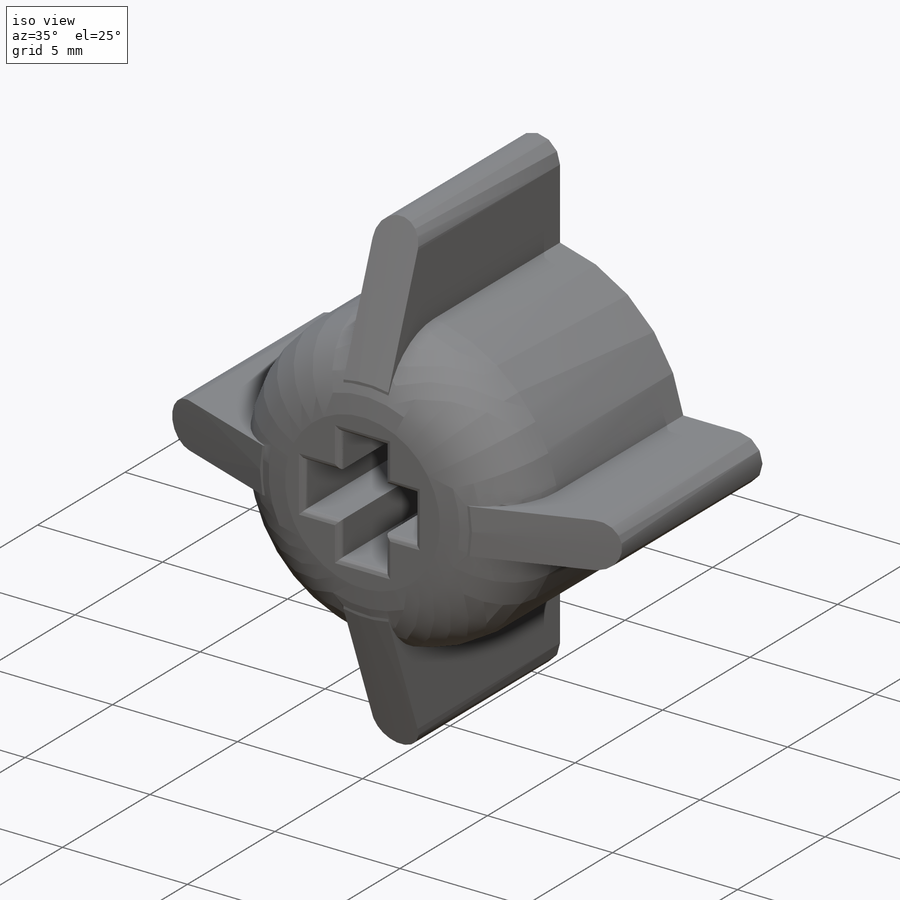
[diagram: iso view]
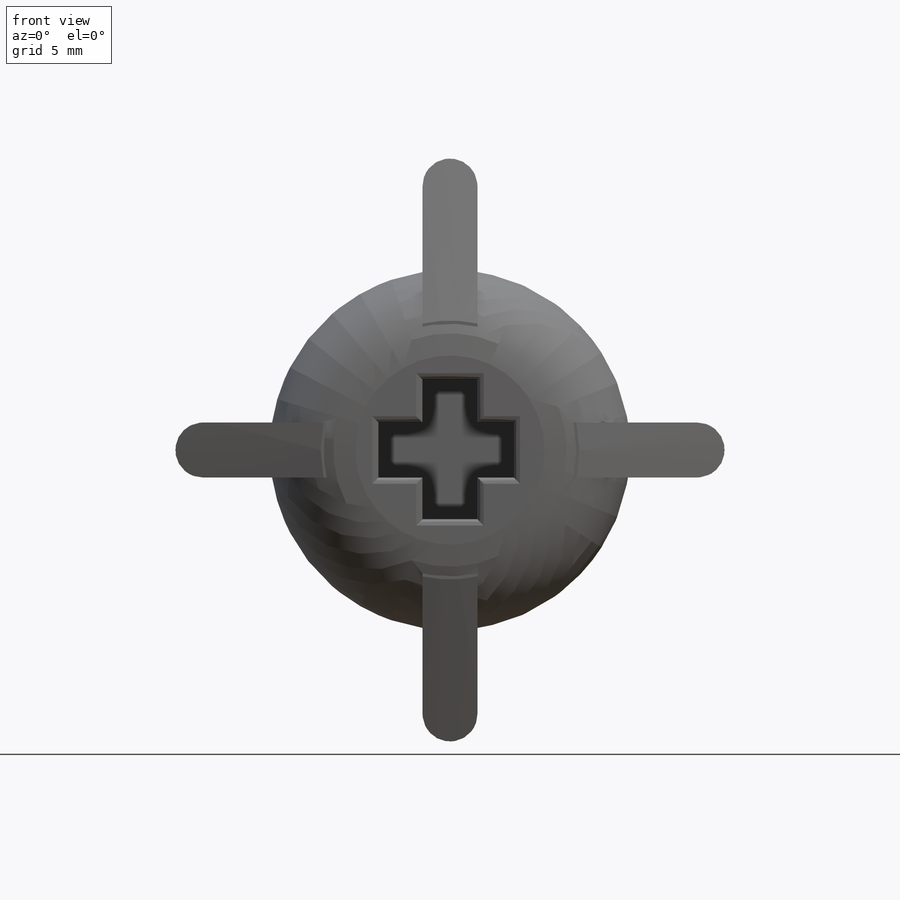
[diagram: front view]
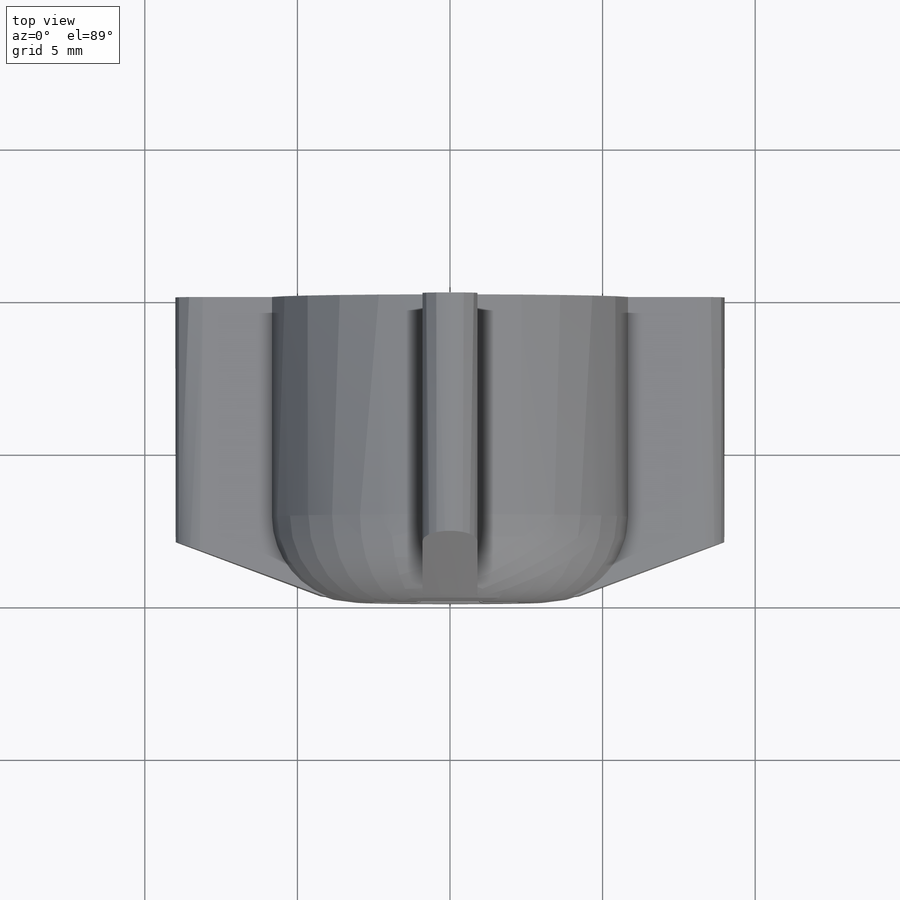
[diagram: top view]
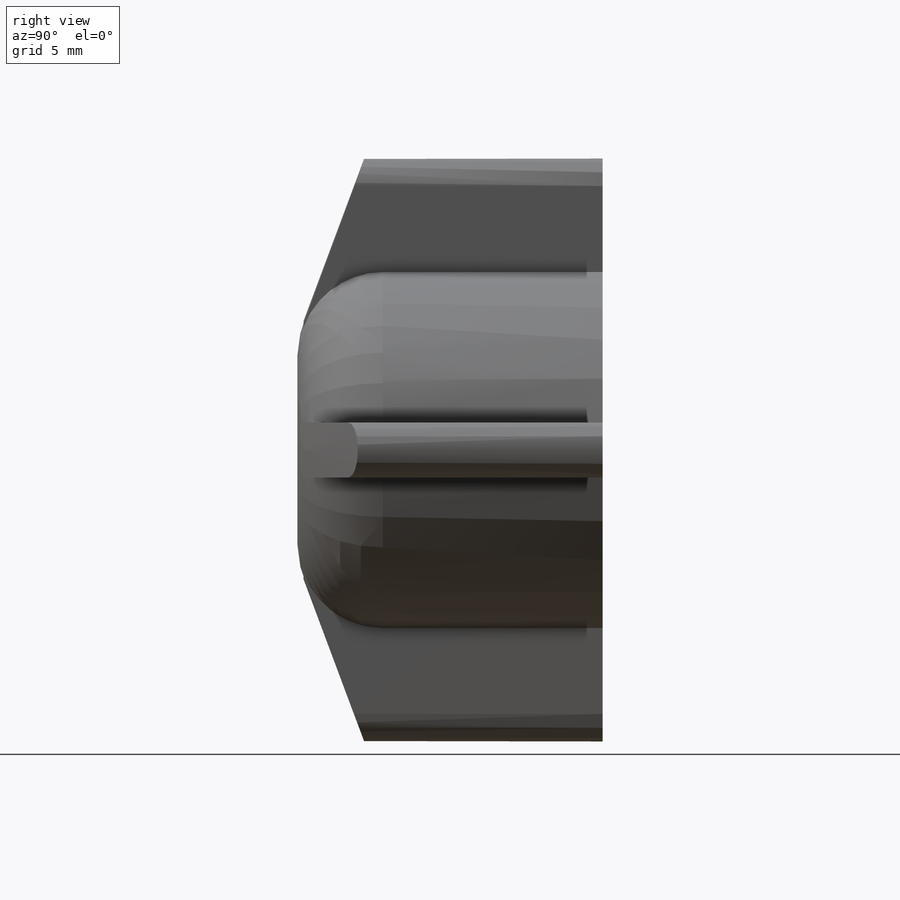
[diagram: right view]
SOLIDWORKS PART (.sldprt)
format: sldprt  version: not decoded by parser v0  size: 321,536 bytes
history: native  units: mm
features: sketch x4, extrude x2, fillet x2, material x1, cut_extrude x1, cut_revolve x1 (+11 scaffold rows collapsed)
feature tree (22):
  scaffold x11  (default folders/planes/origin — collapsed)
  material  "PVC Rigid"
  sketch  "Sketch1"  dims[D1=11.8mm]
  extrude  "Extrude1"  Depth=10mm
  fillet  "Fillet1"  Radius=2.8mm
  sketch  "Sketch2"  dims[D1=1.81mm D2=1.41mm D3=0.905mm D4=0.905mm]
  cut_extrude  "Extrude2"  Depth=8mm
  fillet  "Fillet2"  Radius=0.2mm
  sketch  "Sketch3"  dims[D1=1.8mm D2=8.1mm D3=8.1mm D4=8.65mm D5=8.65mm]
  extrude  "Extrude3"  Depth=9.8mm
  sketch  "Sketch6"
  cut_revolve  "Cut-Revolve3"  Angle=360deg
decode coverage: 9 of 10 modeling features carry decoded parameters
note: suppression state not decoded; provenance and decode notes live in map.json
